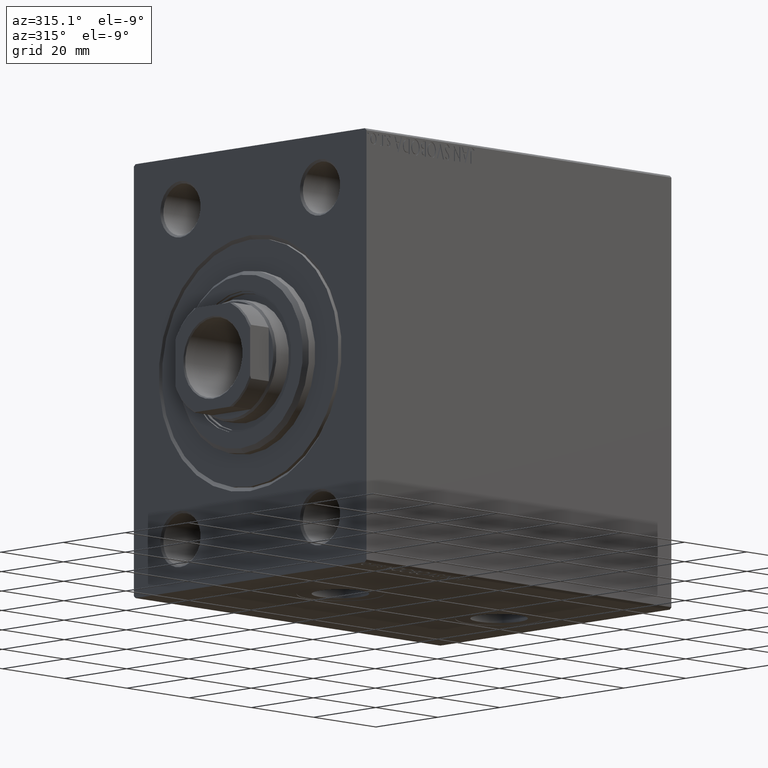
[diagram: clean part render]
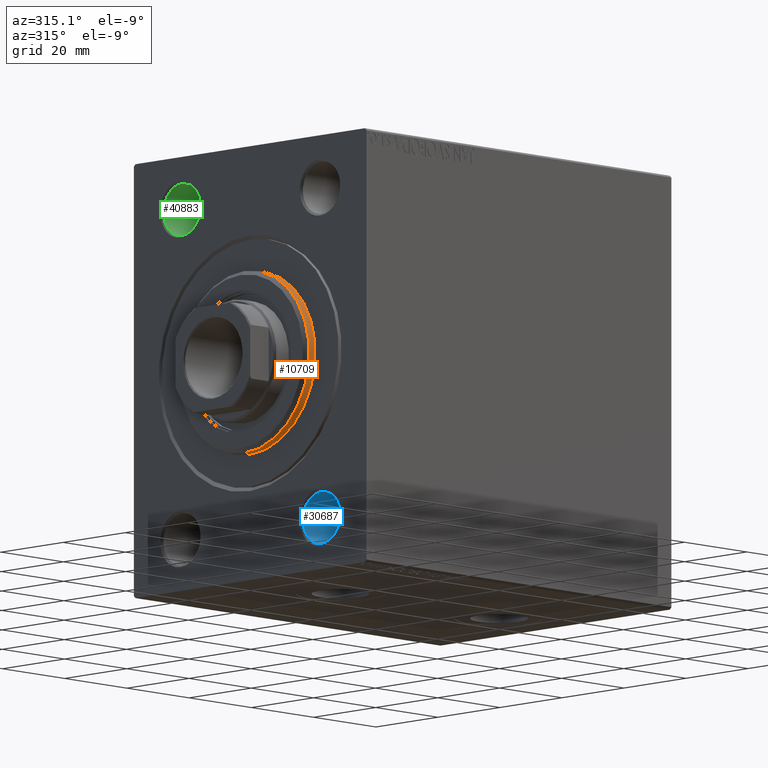
[diagram: same view with three faces highlighted in distinct colors, each labeled with its STEP entity id]
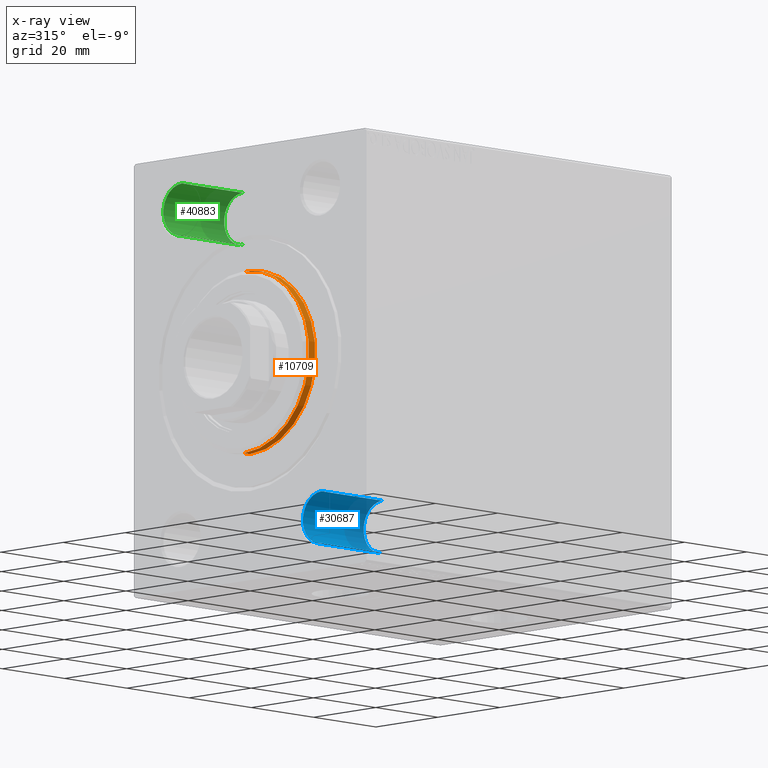
[diagram: x-ray of the same camera — body ghosted, the three highlighted faces saturated]
A machine part, auxiliary view with three faces highlighted in distinct colors.
The next image is the same camera in x-ray (body ghosted, the three faces saturated) — at least one of them is partly hidden behind the body in this view.
Their STEP definitions:

[orange] entity #10709 — the highlighted cylindrical surface (partial cylindrical patch) has radius 21 mm, axis along (1, -0, -0).
#1262 = AXIS2_PLACEMENT_3D ( 'NONE', #36033, #18900, #43417 ) ;
#1698 = ORIENTED_EDGE ( 'NONE', *, *, #3134, .T. ) ;
#3134 = EDGE_CURVE ( 'NONE', #43022, #28006, #33470, .T. ) ;
#3615 = VERTEX_POINT ( 'NONE', #12846 ) ;
#4499 = EDGE_CURVE ( 'NONE', #8802, #28006, #38239, .T. ) ;
#8802 = VERTEX_POINT ( 'NONE', #28456 ) ;
#10091 = VECTOR ( 'NONE', #31723, 1000.000000000000000 ) ;
#10709 = ADVANCED_FACE ( 'NONE', ( #12037 ), #19428, .T. ) ;
#11130 = ORIENTED_EDGE ( 'NONE', *, *, #31502, .T. ) ;
#12037 = FACE_OUTER_BOUND ( 'NONE', #23323, .T. ) ;
#12143 = ORIENTED_EDGE ( 'NONE', *, *, #4499, .F. ) ;
#12846 = CARTESIAN_POINT ( 'NONE',  ( 1.999999999999995781, 2.571758278209441661E-15, -21.00000000000000000 ) ) ;
#13572 = DIRECTION ( 'NONE',  ( -1.000000000000000000, -0.000000000000000000, -0.000000000000000000 ) ) ;
#14177 = CARTESIAN_POINT ( 'NONE',  ( 0.000000000000000000, 2.571758278209441661E-15, -21.00000000000000000 ) ) ;
#14270 = DIRECTION ( 'NONE',  ( 1.000000000000000000, -0.000000000000000000, 0.000000000000000000 ) ) ;
#15643 = CIRCLE ( 'NONE', #1262, 21.00000000000000000 ) ;
#17700 = CARTESIAN_POINT ( 'NONE',  ( 3.000000000000000000, 2.571758278209441661E-15, -21.00000000000000000 ) ) ;
#18900 = DIRECTION ( 'NONE',  ( -1.000000000000000000, 0.000000000000000000, 0.000000000000000000 ) ) ;
#19428 = CYLINDRICAL_SURFACE ( 'NONE', #41140, 21.00000000000000000 ) ;
#20297 = DIRECTION ( 'NONE',  ( 0.000000000000000000, 0.000000000000000000, 1.000000000000000000 ) ) ;
#21592 = CARTESIAN_POINT ( 'NONE',  ( 3.000000000000000000, 0.000000000000000000, 21.00000000000000000 ) ) ;
#22325 = ORIENTED_EDGE ( 'NONE', *, *, #24266, .T. ) ;
#22879 = CARTESIAN_POINT ( 'NONE',  ( 0.000000000000000000, 0.000000000000000000, 21.00000000000000000 ) ) ;
#23323 = EDGE_LOOP ( 'NONE', ( #11130, #22325, #1698, #12143 ) ) ;
#24266 = EDGE_CURVE ( 'NONE', #3615, #43022, #24474, .T. ) ;
#24474 = LINE ( 'NONE', #17700, #25609 ) ;
#25609 = VECTOR ( 'NONE', #41791, 1000.000000000000000 ) ;
#28006 = VERTEX_POINT ( 'NONE', #22879 ) ;
#28456 = CARTESIAN_POINT ( 'NONE',  ( 1.999999999999995781, 0.000000000000000000, 21.00000000000000000 ) ) ;
#29887 = AXIS2_PLACEMENT_3D ( 'NONE', #42396, #14270, #32291 ) ;
#31502 = EDGE_CURVE ( 'NONE', #8802, #3615, #15643, .T. ) ;
#31723 = DIRECTION ( 'NONE',  ( -1.000000000000000000, -0.000000000000000000, -0.000000000000000000 ) ) ;
#32291 = DIRECTION ( 'NONE',  ( 0.000000000000000000, 0.000000000000000000, -1.000000000000000000 ) ) ;
#33172 = CARTESIAN_POINT ( 'NONE',  ( 3.000000000000000000, 0.000000000000000000, 0.000000000000000000 ) ) ;
#33470 = CIRCLE ( 'NONE', #29887, 21.00000000000000000 ) ;
#36033 = CARTESIAN_POINT ( 'NONE',  ( 1.999999999999995781, 0.000000000000000000, 0.000000000000000000 ) ) ;
#38239 = LINE ( 'NONE', #21592, #10091 ) ;
#41140 = AXIS2_PLACEMENT_3D ( 'NONE', #33172, #13572, #20297 ) ;
#41791 = DIRECTION ( 'NONE',  ( -1.000000000000000000, -0.000000000000000000, -0.000000000000000000 ) ) ;
#42396 = CARTESIAN_POINT ( 'NONE',  ( 0.000000000000000000, 0.000000000000000000, 0.000000000000000000 ) ) ;
#43022 = VERTEX_POINT ( 'NONE', #14177 ) ;
#43417 = DIRECTION ( 'NONE',  ( 0.000000000000000000, 0.000000000000000000, -1.000000000000000000 ) ) ;

[blue] entity #30687 — the highlighted cylindrical surface (edge-blend (fillet) strip) has radius 6 mm, axis along (-1, -0, -0).
#1033 = CARTESIAN_POINT ( 'NONE',  ( 0.4999999999999865663, -22.50000000000000000, -44.00000000000000711 ) ) ;
#2374 = DIRECTION ( 'NONE',  ( -1.000000000000000000, -0.000000000000000000, -0.000000000000000000 ) ) ;
#3060 = CIRCLE ( 'NONE', #22441, 5.999999999999998224 ) ;
#5448 = EDGE_LOOP ( 'NONE', ( #34663, #43277, #41501, #7352 ) ) ;
#5734 = CARTESIAN_POINT ( 'NONE',  ( 0.000000000000000000, -22.50000000000000000, -32.00000000000000711 ) ) ;
#7352 = ORIENTED_EDGE ( 'NONE', *, *, #19884, .T. ) ;
#7472 = DIRECTION ( 'NONE',  ( -1.000000000000000000, 0.000000000000000000, 0.000000000000000000 ) ) ;
#8770 = CARTESIAN_POINT ( 'NONE',  ( 0.000000000000000000, -22.50000000000000000, -38.00000000000000711 ) ) ;
#8997 = FACE_OUTER_BOUND ( 'NONE', #5448, .T. ) ;
#9696 = CARTESIAN_POINT ( 'NONE',  ( 20.00000000000000000, -22.50000000000000000, -32.00000000000000711 ) ) ;
#13298 = VECTOR ( 'NONE', #31588, 1000.000000000000000 ) ;
#13503 = EDGE_CURVE ( 'NONE', #42883, #13789, #3060, .T. ) ;
#13789 = VERTEX_POINT ( 'NONE', #26328 ) ;
#15523 = CYLINDRICAL_SURFACE ( 'NONE', #41450, 5.999999999999998224 ) ;
#15842 = LINE ( 'NONE', #5734, #19827 ) ;
#17550 = CIRCLE ( 'NONE', #34117, 5.999999999999998224 ) ;
#17827 = CARTESIAN_POINT ( 'NONE',  ( 0.000000000000000000, -22.50000000000000000, -44.00000000000000711 ) ) ;
#18681 = DIRECTION ( 'NONE',  ( -1.000000000000000000, -0.000000000000000000, -0.000000000000000000 ) ) ;
#19827 = VECTOR ( 'NONE', #2374, 1000.000000000000000 ) ;
#19884 = EDGE_CURVE ( 'NONE', #41102, #40001, #17550, .T. ) ;
#20762 = CARTESIAN_POINT ( 'NONE',  ( 0.4999999999999865663, -22.50000000000000000, -38.00000000000000711 ) ) ;
#20771 = EDGE_CURVE ( 'NONE', #13789, #40001, #21450, .T. ) ;
#21450 = LINE ( 'NONE', #17827, #13298 ) ;
#22361 = DIRECTION ( 'NONE',  ( 0.000000000000000000, 0.000000000000000000, 1.000000000000000000 ) ) ;
#22402 = CARTESIAN_POINT ( 'NONE',  ( 0.4999999999999865663, -22.50000000000000000, -32.00000000000000711 ) ) ;
#22441 = AXIS2_PLACEMENT_3D ( 'NONE', #40325, #22579, #22361 ) ;
#22579 = DIRECTION ( 'NONE',  ( -1.000000000000000000, -0.000000000000000000, -0.000000000000000000 ) ) ;
#26328 = CARTESIAN_POINT ( 'NONE',  ( 20.00000000000000000, -22.50000000000000000, -44.00000000000000711 ) ) ;
#29083 = EDGE_CURVE ( 'NONE', #42883, #41102, #15842, .T. ) ;
#30687 = ADVANCED_FACE ( 'NONE', ( #8997 ), #15523, .F. ) ;
#31588 = DIRECTION ( 'NONE',  ( -1.000000000000000000, -0.000000000000000000, -0.000000000000000000 ) ) ;
#32871 = DIRECTION ( 'NONE',  ( 0.000000000000000000, 0.000000000000000000, 1.000000000000000000 ) ) ;
#34117 = AXIS2_PLACEMENT_3D ( 'NONE', #20762, #7472, #38313 ) ;
#34663 = ORIENTED_EDGE ( 'NONE', *, *, #20771, .F. ) ;
#38313 = DIRECTION ( 'NONE',  ( 0.000000000000000000, 0.000000000000000000, -1.000000000000000000 ) ) ;
#40001 = VERTEX_POINT ( 'NONE', #1033 ) ;
#40325 = CARTESIAN_POINT ( 'NONE',  ( 20.00000000000000000, -22.50000000000000000, -38.00000000000000711 ) ) ;
#41102 = VERTEX_POINT ( 'NONE', #22402 ) ;
#41450 = AXIS2_PLACEMENT_3D ( 'NONE', #8770, #18681, #32871 ) ;
#41501 = ORIENTED_EDGE ( 'NONE', *, *, #29083, .T. ) ;
#42883 = VERTEX_POINT ( 'NONE', #9696 ) ;
#43277 = ORIENTED_EDGE ( 'NONE', *, *, #13503, .F. ) ;

[green] entity #40883 — the highlighted cylindrical surface (edge-blend (fillet) strip) has radius 6 mm, axis along (-1, -0, -0).
#24 = ORIENTED_EDGE ( 'NONE', *, *, #43129, .T. ) ;
#90 = ORIENTED_EDGE ( 'NONE', *, *, #26196, .F. ) ;
#3292 = DIRECTION ( 'NONE',  ( 0.000000000000000000, 0.000000000000000000, -1.000000000000000000 ) ) ;
#6665 = CIRCLE ( 'NONE', #19616, 5.999999999999998224 ) ;
#7135 = CARTESIAN_POINT ( 'NONE',  ( 20.00000000000000000, 22.50000000000000000, 43.99999999999999289 ) ) ;
#9097 = CARTESIAN_POINT ( 'NONE',  ( 0.000000000000000000, 22.50000000000000000, 43.99999999999999289 ) ) ;
#11485 = VERTEX_POINT ( 'NONE', #7135 ) ;
#14076 = CARTESIAN_POINT ( 'NONE',  ( 0.000000000000000000, 22.50000000000000000, 37.99999999999999289 ) ) ;
#15300 = EDGE_CURVE ( 'NONE', #11485, #43542, #6665, .T. ) ;
#19616 = AXIS2_PLACEMENT_3D ( 'NONE', #37212, #31131, #41240 ) ;
#19924 = DIRECTION ( 'NONE',  ( 0.000000000000000000, 0.000000000000000000, 1.000000000000000000 ) ) ;
#20821 = CYLINDRICAL_SURFACE ( 'NONE', #32192, 5.999999999999998224 ) ;
#21539 = ORIENTED_EDGE ( 'NONE', *, *, #15300, .F. ) ;
#23529 = CARTESIAN_POINT ( 'NONE',  ( 0.4999999999999865663, 22.50000000000000000, 37.99999999999999289 ) ) ;
#23620 = AXIS2_PLACEMENT_3D ( 'NONE', #23529, #34112, #3292 ) ;
#23694 = LINE ( 'NONE', #9097, #40713 ) ;
#26196 = EDGE_CURVE ( 'NONE', #43542, #33023, #36987, .T. ) ;
#26212 = EDGE_CURVE ( 'NONE', #11485, #31286, #23694, .T. ) ;
#27133 = DIRECTION ( 'NONE',  ( -1.000000000000000000, -0.000000000000000000, -0.000000000000000000 ) ) ;
#28394 = CARTESIAN_POINT ( 'NONE',  ( 0.4999999999999865663, 22.50000000000000000, 43.99999999999999289 ) ) ;
#29255 = VECTOR ( 'NONE', #30033, 1000.000000000000000 ) ;
#29704 = ORIENTED_EDGE ( 'NONE', *, *, #26212, .T. ) ;
#30033 = DIRECTION ( 'NONE',  ( -1.000000000000000000, -0.000000000000000000, -0.000000000000000000 ) ) ;
#31108 = EDGE_LOOP ( 'NONE', ( #90, #21539, #29704, #24 ) ) ;
#31131 = DIRECTION ( 'NONE',  ( -1.000000000000000000, -0.000000000000000000, -0.000000000000000000 ) ) ;
#31188 = FACE_OUTER_BOUND ( 'NONE', #31108, .T. ) ;
#31286 = VERTEX_POINT ( 'NONE', #28394 ) ;
#32192 = AXIS2_PLACEMENT_3D ( 'NONE', #14076, #27133, #19924 ) ;
#33023 = VERTEX_POINT ( 'NONE', #36321 ) ;
#34112 = DIRECTION ( 'NONE',  ( -1.000000000000000000, 0.000000000000000000, 0.000000000000000000 ) ) ;
#36321 = CARTESIAN_POINT ( 'NONE',  ( 0.4999999999999865663, 22.50000000000000000, 31.99999999999999289 ) ) ;
#36932 = CARTESIAN_POINT ( 'NONE',  ( 20.00000000000000000, 22.50000000000000000, 31.99999999999999289 ) ) ;
#36987 = LINE ( 'NONE', #39921, #29255 ) ;
#37212 = CARTESIAN_POINT ( 'NONE',  ( 20.00000000000000000, 22.50000000000000000, 37.99999999999999289 ) ) ;
#39921 = CARTESIAN_POINT ( 'NONE',  ( 0.000000000000000000, 22.50000000000000000, 31.99999999999999289 ) ) ;
#40178 = CIRCLE ( 'NONE', #23620, 5.999999999999998224 ) ;
#40713 = VECTOR ( 'NONE', #43943, 1000.000000000000000 ) ;
#40883 = ADVANCED_FACE ( 'NONE', ( #31188 ), #20821, .F. ) ;
#41240 = DIRECTION ( 'NONE',  ( 0.000000000000000000, 0.000000000000000000, 1.000000000000000000 ) ) ;
#43129 = EDGE_CURVE ( 'NONE', #31286, #33023, #40178, .T. ) ;
#43542 = VERTEX_POINT ( 'NONE', #36932 ) ;
#43943 = DIRECTION ( 'NONE',  ( -1.000000000000000000, -0.000000000000000000, -0.000000000000000000 ) ) ;